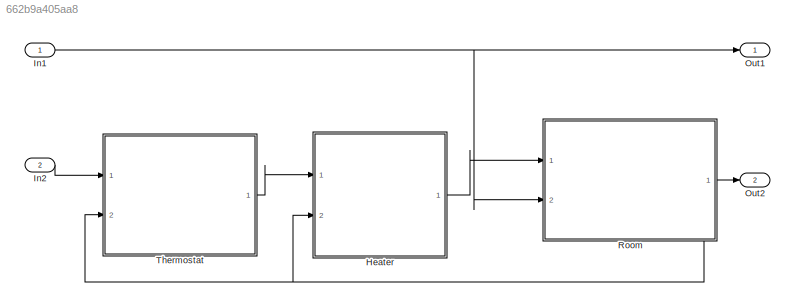
MODEL slx_662b9a405aa8
KIND model
CONFIG AbsTol = auto
CONFIG EnableMultiTasking = off
CONFIG FixedStep = auto
CONFIG MaxStep = auto
CONFIG MinStep = auto
CONFIG RelTol = 1e-3
CONFIG SampleTimeConstraint = Unconstrained
CONFIG Solver = ode45
CONFIG SolverName = ode45
CONFIG StartTime = 0.0
CONFIG StopTime = 24
WORKSPACE source: MAT-file member
WORKSPACE M_heater_air = 3600
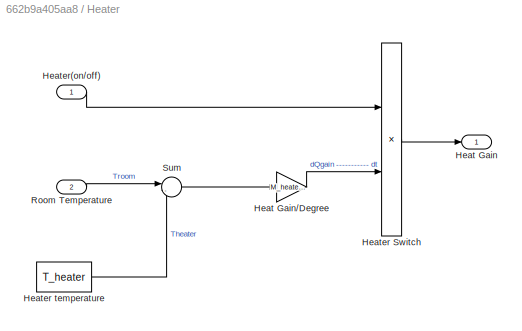
BLOCK [SubSystem] Heater
  Ports = [2, 1]
  RequestExecContextInheritance = off
BLOCK [Outport] Heater/Heat Gain
  IconDisplay = Port number
  Unit = joule/h
BLOCK [Gain] Heater/Heat Gain//Degree
  Gain = M_heater_air*c_air
  OutDataTypeStr = Inherit: Inherit via internal rule
  ParamDataTypeStr = Inherit: Inherit via internal rule
  SaturateOnIntegerOverflow = off
BLOCK [Product] Heater/Heater Switch
  InputSameDT = off
  OutDataTypeStr = Inherit: Inherit via internal rule
  Ports = [2, 1]
  RndMeth = Floor
  SaturateOnIntegerOverflow = off
BLOCK [Constant] Heater/Heater temperature
  Value = T_heater
BLOCK [Inport] Heater/Heater(on//off)
  IconDisplay = Port number
BLOCK [Inport] Heater/Room Temperature
  IconDisplay = Port number
  Port = 2
BLOCK [Sum] Heater/Sum
  IconShape = round
  InputSameDT = off
  Inputs = |-+
  OutDataTypeStr = Inherit: Inherit via internal rule
  Ports = [2, 1]
  SaturateOnIntegerOverflow = off
BLOCK [Inport] In1
  IconDisplay = Port number
  Unit = °C
BLOCK [Inport] In2
  IconDisplay = Port number
  Port = 2
  Unit = °C
BLOCK [Outport] Out1
  IconDisplay = Port number
BLOCK [Outport] Out2
  IconDisplay = Port number
  Port = 2
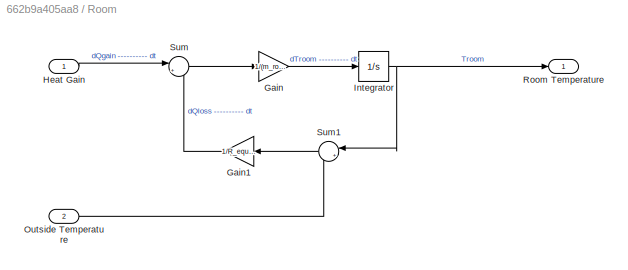
BLOCK [SubSystem] Room
  Ports = [2, 1]
  RequestExecContextInheritance = off
BLOCK [Gain] Room/Gain
  Gain = 1/(m_room_air*c_air)
  OutDataTypeStr = Inherit: Inherit via internal rule
  ParamDataTypeStr = Inherit: Inherit via internal rule
  SaturateOnIntegerOverflow = off
BLOCK [Gain] Room/Gain1
  Gain = 1/R_equivalent
  OutDataTypeStr = Inherit: Inherit via internal rule
  ParamDataTypeStr = Inherit: Inherit via internal rule
  SaturateOnIntegerOverflow = off
BLOCK [Inport] Room/Heat Gain
  IconDisplay = Port number
BLOCK [Integrator] Room/Integrator
  InitialCondition = T_roomIC
  Ports = [1, 1]
BLOCK [Inport] Room/Outside Temperature
  IconDisplay = Port number
  Port = 2
BLOCK [Outport] Room/Room Temperature
  IconDisplay = Port number
BLOCK [Sum] Room/Sum
  IconShape = round
  InputSameDT = off
  Inputs = |+-
  OutDataTypeStr = Inherit: Inherit via internal rule
  Ports = [2, 1]
  SaturateOnIntegerOverflow = off
BLOCK [Sum] Room/Sum1
  IconShape = round
  InputSameDT = off
  Inputs = |+-
  OutDataTypeStr = Inherit: Inherit via internal rule
  Ports = [2, 1]
  SaturateOnIntegerOverflow = off
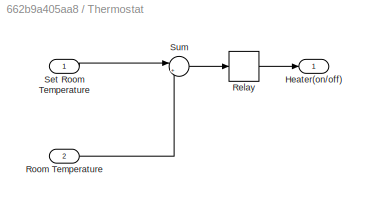
BLOCK [SubSystem] Thermostat
  Ports = [2, 1]
  RequestExecContextInheritance = off
BLOCK [Outport] Thermostat/Heater(on//off)
  IconDisplay = Port number
BLOCK [Relay] Thermostat/Relay
  InputProcessing = Elements as channels (sample based)
  OffSwitchValue = -2
  OnSwitchValue = 2
BLOCK [Inport] Thermostat/Room Temperature
  IconDisplay = Port number
  Port = 2
BLOCK [Inport] Thermostat/Set Room Temperature
  IconDisplay = Port number
BLOCK [Sum] Thermostat/Sum
  IconShape = round
  InputSameDT = off
  Inputs = |+-
  OutDataTypeStr = Inherit: Inherit via internal rule
  Ports = [2, 1]
  SaturateOnIntegerOverflow = off
LINE Heater/Heat Gain//Degree:1 -> Heater/Heater Switch:2
LINE Heater/Heater Switch:1 -> Heater/Heat Gain:1
LINE Heater/Heater temperature:1 -> Heater/Sum:2
LINE Heater/Heater(on//off):1 -> Heater/Heater Switch:1
LINE Heater/Room Temperature:1 -> Heater/Sum:1
LINE Heater/Sum:1 -> Heater/Heat Gain//Degree:1
LINE Heater:1 -> Room:1
NET In1:1 -> Out1:1, Room:2
LINE In2:1 -> Thermostat:1
LINE Room/Gain1:1 -> Room/Sum:2
LINE Room/Gain:1 -> Room/Integrator:1
LINE Room/Heat Gain:1 -> Room/Sum:1
NET Room/Integrator:1 -> Room/Room Temperature:1, Room/Sum1:1
LINE Room/Outside Temperature:1 -> Room/Sum1:2
LINE Room/Sum1:1 -> Room/Gain1:1
LINE Room/Sum:1 -> Room/Gain:1
NET Room:1 -> Heater:2, Out2:1, Thermostat:2
LINE Thermostat/Relay:1 -> Thermostat/Heater(on//off):1
LINE Thermostat/Room Temperature:1 -> Thermostat/Sum:2
LINE Thermostat/Set Room Temperature:1 -> Thermostat/Sum:1
LINE Thermostat/Sum:1 -> Thermostat/Relay:1
LINE Thermostat:1 -> Heater:1
note: NET lines group one-source signal fan-out (src -> all destinations, sorted); 1:1 wires keep LINE
